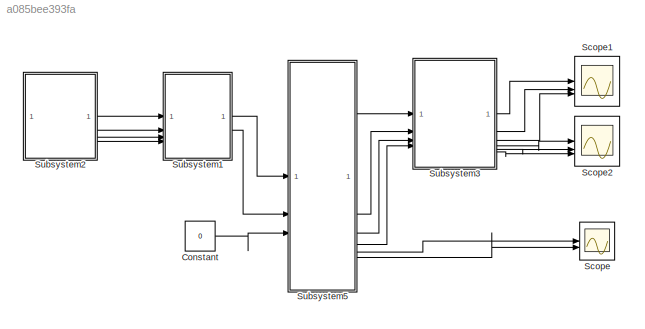
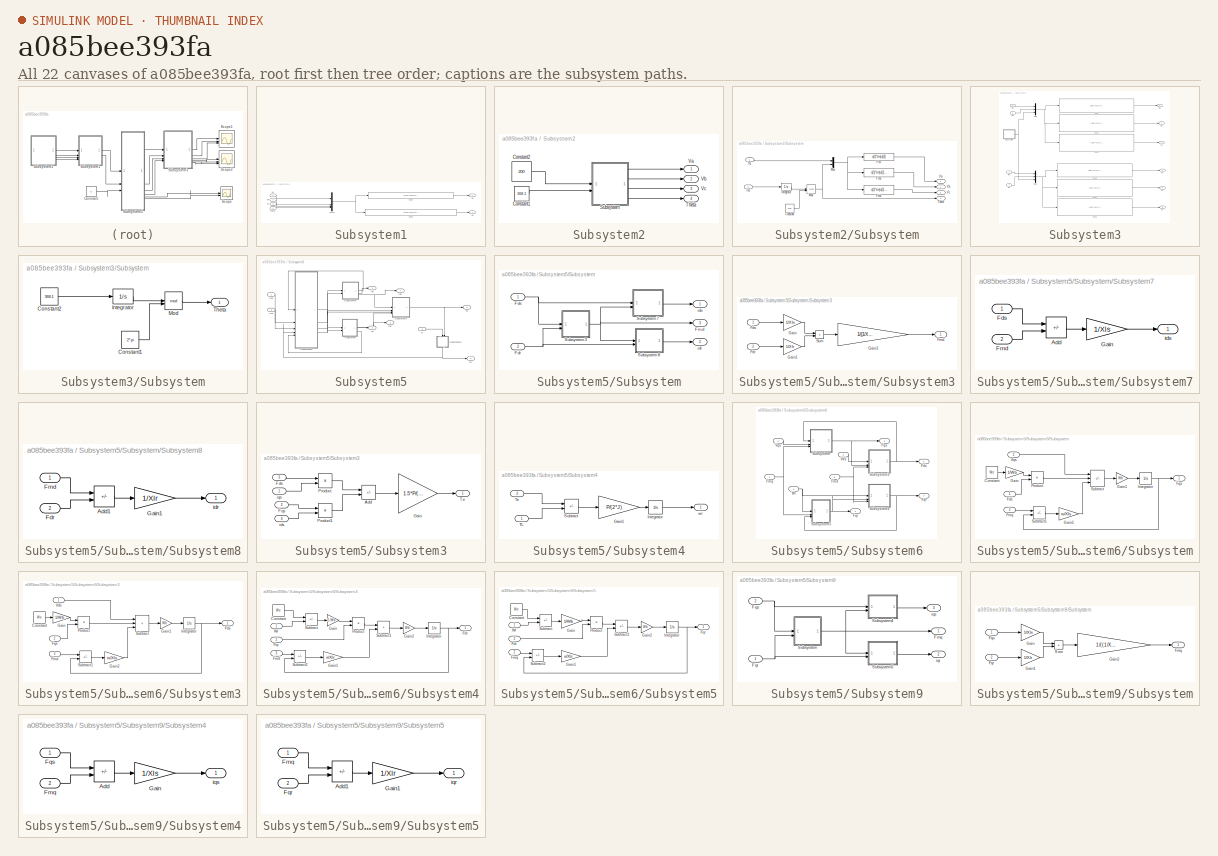
[diagram: thumbnail index - all 22 canvases of the model, root first then tree order]
MODEL slx_a085bee393fa
KIND model
CONFIG AbsTol = auto
CONFIG EnableMultiTasking = off
CONFIG FixedStep = auto
CONFIG MaxStep = auto
CONFIG MinStep = auto
CONFIG RelTol = 1e-3
CONFIG SampleTimeConstraint = Unconstrained
CONFIG SolverName = VariableStepAuto
CONFIG StartTime = 0.0
CONFIG StopTime = 100
BLOCK [Constant] Constant
  Value = 0
BLOCK [Scope] Scope
  Floating = off
  NumInputPorts = 2
  ScopeSpecificationString = Simulink.scopes.TimeScopeBlockCfg('CurrentConfiguration', extmgr.ConfigurationSet(extmgr.Configuration('Core','General UI',true),extmgr.Configuration('Core','Source UI',true),extmgr.Configuration('Sources','WiredSimulink',true),extmgr.Configuration('Visuals','Time Domain',true,'SerializedDisplays',{struct('MinYLimReal','-3.77568','MaxYLimReal','5.57688','YLabelReal','','MinYLimMag','0.00000','MaxY...<+2059ch>
BLOCK [Scope] Scope1
  Floating = off
  NumInputPorts = 3
  ScopeSpecificationString = Simulink.scopes.TimeScopeBlockCfg('CurrentConfiguration', extmgr.ConfigurationSet(extmgr.Configuration('Core','General UI',true),extmgr.Configuration('Core','Source UI',true),extmgr.Configuration('Sources','WiredSimulink',true,'DataLoggingVariableName','ScopeData1'),extmgr.Configuration('Visuals','Time Domain',true,'SerializedDisplays',{struct('MinYLimReal','-91.05672','MaxYLimReal','86.67405','YL...<+2805ch>
BLOCK [Scope] Scope2
  Floating = off
  NumInputPorts = 3
  ScopeSpecificationString = Simulink.scopes.TimeScopeBlockCfg('CurrentConfiguration', extmgr.ConfigurationSet(extmgr.Configuration('Core','General UI',true),extmgr.Configuration('Core','Source UI',true),extmgr.Configuration('Sources','WiredSimulink',true,'DataLoggingVariableName','ScopeData2'),extmgr.Configuration('Visuals','Time Domain',true,'SerializedDisplays',{struct('MinYLimReal','-83.80173','MaxYLimReal','89.36896','YL...<+2799ch>
BLOCK [SubSystem] Subsystem1
BLOCK [Fcn] Subsystem1/Fcn3
  Expr = (2/3)*(u[1]*sin(u[4])+u[2]*(sin(u[4]-((120*3.14)/180)))+u[3]*(sin(u[4]+((120*3.14)/180))))
BLOCK [Fcn] Subsystem1/Fcn4
  Expr = (2/3)*(u[1]*cos(u[4])+u[2]*(cos(u[4]-((120*3.14)/180)))+u[3]*(cos(u[4]+((120*3.14)/180))))
BLOCK [Mux] Subsystem1/Mux1
  DisplayOption = bar
BLOCK [Inport] Subsystem1/Va
BLOCK [Inport] Subsystem1/Vb
  Port = 2
BLOCK [Inport] Subsystem1/Vc
  Port = 3
BLOCK [Outport] Subsystem1/Vd
BLOCK [Outport] Subsystem1/Vq
  Port = 2
BLOCK [Inport] Subsystem1/theta
  Port = 4
BLOCK [SubSystem] Subsystem2
BLOCK [Constant] Subsystem2/Constant1
  Value = 368.1
BLOCK [Constant] Subsystem2/Constant2
  Value = 200
BLOCK [SubSystem] Subsystem2/Subsystem
BLOCK [Constant] Subsystem2/Subsystem/Constant
  Value = 2*pi
BLOCK [Fcn] Subsystem2/Subsystem/Fcn
  Expr = u(1)*sin(u(2))
BLOCK [Fcn] Subsystem2/Subsystem/Fcn1
  Expr = u(1)*sin(u(2)-2*pi/3)
BLOCK [Fcn] Subsystem2/Subsystem/Fcn2
  Expr = u(1)*sin(u(2)+2*pi/3)
BLOCK [Inport] Subsystem2/Subsystem/In1
BLOCK [Inport] Subsystem2/Subsystem/In2
  Port = 2
BLOCK [Integrator] Subsystem2/Subsystem/Integrator
BLOCK [Math] Subsystem2/Subsystem/Mod
  Operator = mod
BLOCK [Mux] Subsystem2/Subsystem/Mux
  DisplayOption = bar
  Inputs = 2
BLOCK [Outport] Subsystem2/Subsystem/Theta
  Port = 4
BLOCK [Outport] Subsystem2/Subsystem/Va
BLOCK [Outport] Subsystem2/Subsystem/Vb
  Port = 2
BLOCK [Outport] Subsystem2/Subsystem/Vc
  Port = 3
BLOCK [Outport] Subsystem2/Theta
  Port = 4
BLOCK [Outport] Subsystem2/Va
BLOCK [Outport] Subsystem2/Vb
  Port = 2
BLOCK [Outport] Subsystem2/Vc
  Port = 3
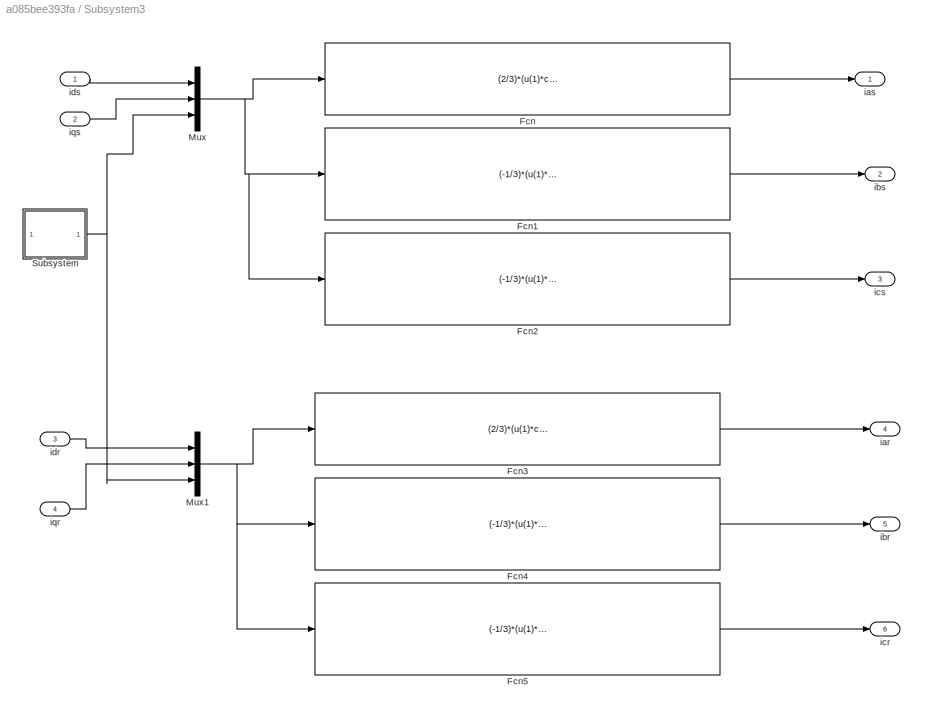
BLOCK [SubSystem] Subsystem3
BLOCK [Fcn] Subsystem3/Fcn
  Expr = (2/3)*(u(1)*cos(u(3))-u(2)*sin(u(3)))
BLOCK [Fcn] Subsystem3/Fcn1
  Expr = (-1/3)*(u(1)*(cos(u(3))+1.732*sin(u(3)))+u(2)*(1.732*cos(u(3))-sin(u(3))))
BLOCK [Fcn] Subsystem3/Fcn2
  Expr = (-1/3)*(u(1)*(cos(u(3))-1.732*sin(u(3)))-u(2)*(1.732*cos(u(3))-sin(u(3))))
BLOCK [Fcn] Subsystem3/Fcn3
  Expr = (2/3)*(u(1)*cos(u(3))-u(2)*sin(u(3)))
BLOCK [Fcn] Subsystem3/Fcn4
  Expr = (-1/3)*(u(1)*(cos(u(3))+1.732*sin(u(3)))+u(2)*(1.732*cos(u(3))-sin(u(3))))
BLOCK [Fcn] Subsystem3/Fcn5
  Expr = (-1/3)*(u(1)*(cos(u(3))-1.732*sin(u(3)))-u(2)*(1.732*cos(u(3))-sin(u(3))))
BLOCK [Mux] Subsystem3/Mux
  DisplayOption = bar
  Inputs = 3
BLOCK [Mux] Subsystem3/Mux1
  DisplayOption = bar
  Inputs = 3
BLOCK [SubSystem] Subsystem3/Subsystem
BLOCK [Constant] Subsystem3/Subsystem/Constant1
  Value = 2*pi
BLOCK [Constant] Subsystem3/Subsystem/Constant2
  Value = 368.1
BLOCK [Integrator] Subsystem3/Subsystem/Integrator
BLOCK [Math] Subsystem3/Subsystem/Mod
  Operator = mod
BLOCK [Outport] Subsystem3/Subsystem/Theta
BLOCK [Outport] Subsystem3/iar
  Port = 4
BLOCK [Outport] Subsystem3/ias
BLOCK [Outport] Subsystem3/ibr
  Port = 5
BLOCK [Outport] Subsystem3/ibs
  Port = 2
BLOCK [Outport] Subsystem3/icr
  Port = 6
BLOCK [Outport] Subsystem3/ics
  Port = 3
BLOCK [Inport] Subsystem3/idr
  Port = 3
BLOCK [Inport] Subsystem3/ids
BLOCK [Inport] Subsystem3/iqr
  Port = 4
BLOCK [Inport] Subsystem3/iqs
  Port = 2
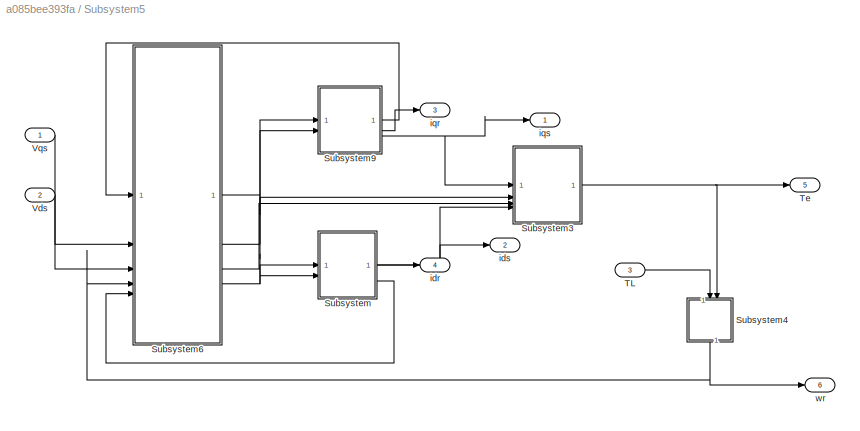
BLOCK [SubSystem] Subsystem5
BLOCK [SubSystem] Subsystem5/Subsystem
BLOCK [Inport] Subsystem5/Subsystem/Fdr
  Port = 2
BLOCK [Inport] Subsystem5/Subsystem/Fds
BLOCK [Outport] Subsystem5/Subsystem/Fmd
  Port = 3
BLOCK [SubSystem] Subsystem5/Subsystem/Subsystem3
BLOCK [Inport] Subsystem5/Subsystem/Subsystem3/Fdr
  Port = 2
BLOCK [Inport] Subsystem5/Subsystem/Subsystem3/Fds
BLOCK [Outport] Subsystem5/Subsystem/Subsystem3/Fmd
BLOCK [Gain] Subsystem5/Subsystem/Subsystem3/Gain
  Gain = 1/Xls
BLOCK [Gain] Subsystem5/Subsystem/Subsystem3/Gain1
  Gain = 1/Xlr
BLOCK [Gain] Subsystem5/Subsystem/Subsystem3/Gain2
  Gain = 1/((1/Xm)+(1/Xls)+(1/Xlr))
BLOCK [Sum] Subsystem5/Subsystem/Subsystem3/Sum
  IconShape = rectangular
BLOCK [SubSystem] Subsystem5/Subsystem/Subsystem7
BLOCK [Sum] Subsystem5/Subsystem/Subsystem7/Add
  IconShape = rectangular
  Inputs = +-
BLOCK [Inport] Subsystem5/Subsystem/Subsystem7/Fds
BLOCK [Inport] Subsystem5/Subsystem/Subsystem7/Fmd
  Port = 2
BLOCK [Gain] Subsystem5/Subsystem/Subsystem7/Gain
  Gain = 1/Xls
BLOCK [Outport] Subsystem5/Subsystem/Subsystem7/ids
BLOCK [SubSystem] Subsystem5/Subsystem/Subsystem8
BLOCK [Sum] Subsystem5/Subsystem/Subsystem8/Add1
  IconShape = rectangular
  Inputs = -+
BLOCK [Inport] Subsystem5/Subsystem/Subsystem8/Fdr
  Port = 2
BLOCK [Inport] Subsystem5/Subsystem/Subsystem8/Fmd
BLOCK [Gain] Subsystem5/Subsystem/Subsystem8/Gain1
  Gain = 1/Xlr
BLOCK [Outport] Subsystem5/Subsystem/Subsystem8/idr
BLOCK [Outport] Subsystem5/Subsystem/idr
  Port = 2
BLOCK [Outport] Subsystem5/Subsystem/ids
BLOCK [SubSystem] Subsystem5/Subsystem3
BLOCK [Sum] Subsystem5/Subsystem3/Add
  IconShape = rectangular
  Inputs = +-
BLOCK [Inport] Subsystem5/Subsystem3/Fds
  Port = 3
BLOCK [Inport] Subsystem5/Subsystem3/Fqs
  Port = 2
BLOCK [Gain] Subsystem5/Subsystem3/Gain
  Gain = 1.5*P/(2*wb)
BLOCK [Product] Subsystem5/Subsystem3/Product
BLOCK [Product] Subsystem5/Subsystem3/Product1
BLOCK [Outport] Subsystem5/Subsystem3/Te
BLOCK [Inport] Subsystem5/Subsystem3/ids
  Port = 4
BLOCK [Inport] Subsystem5/Subsystem3/iqs
BLOCK [SubSystem] Subsystem5/Subsystem4
  NameLocation = left
BLOCK [Gain] Subsystem5/Subsystem4/Gain1
  Gain = P/(2*J)
BLOCK [Integrator] Subsystem5/Subsystem4/Integrator
BLOCK [Sum] Subsystem5/Subsystem4/Subtract
  IconShape = rectangular
  Inputs = +-
BLOCK [Inport] Subsystem5/Subsystem4/TL
BLOCK [Inport] Subsystem5/Subsystem4/Te
  Port = 2
BLOCK [Outport] Subsystem5/Subsystem4/wr
BLOCK [SubSystem] Subsystem5/Subsystem6
BLOCK [Outport] Subsystem5/Subsystem6/Fdr
  Port = 4
BLOCK [Outport] Subsystem5/Subsystem6/Fds
  Port = 3
BLOCK [Inport] Subsystem5/Subsystem6/Fmd
  Port = 5
BLOCK [Inport] Subsystem5/Subsystem6/Fmq
BLOCK [Outport] Subsystem5/Subsystem6/Fqr
BLOCK [Outport] Subsystem5/Subsystem6/Fqs
  Port = 2
BLOCK [SubSystem] Subsystem5/Subsystem6/Subsystem
BLOCK [Constant] Subsystem5/Subsystem6/Subsystem/Constant
  Value = We
BLOCK [Inport] Subsystem5/Subsystem6/Subsystem/Fds
BLOCK [Inport] Subsystem5/Subsystem6/Subsystem/Fmq
  Port = 3
BLOCK [Outport] Subsystem5/Subsystem6/Subsystem/Fqs
BLOCK [Gain] Subsystem5/Subsystem6/Subsystem/Gain
  Gain = 1/Wb
BLOCK [Gain] Subsystem5/Subsystem6/Subsystem/Gain1
  Gain = Wb
BLOCK [Gain] Subsystem5/Subsystem6/Subsystem/Gain2
  Gain = rs/Xls
BLOCK [Integrator] Subsystem5/Subsystem6/Subsystem/Integrator
BLOCK [Product] Subsystem5/Subsystem6/Subsystem/Product
BLOCK [Sum] Subsystem5/Subsystem6/Subsystem/Subtract
  IconShape = rectangular
  Inputs = +-+
BLOCK [Sum] Subsystem5/Subsystem6/Subsystem/Subtract1
  IconShape = rectangular
  Inputs = +-
BLOCK [Inport] Subsystem5/Subsystem6/Subsystem/Vqs
  Port = 2
BLOCK [SubSystem] Subsystem5/Subsystem6/Subsystem3
BLOCK [Constant] Subsystem5/Subsystem6/Subsystem3/Constant
  Value = We
BLOCK [Outport] Subsystem5/Subsystem6/Subsystem3/Fds
BLOCK [Inport] Subsystem5/Subsystem6/Subsystem3/Fmd
  Port = 3
BLOCK [Inport] Subsystem5/Subsystem6/Subsystem3/Fqs
  Port = 2
BLOCK [Gain] Subsystem5/Subsystem6/Subsystem3/Gain
  Gain = 1/Wb
BLOCK [Gain] Subsystem5/Subsystem6/Subsystem3/Gain1
  Gain = Wb
BLOCK [Gain] Subsystem5/Subsystem6/Subsystem3/Gain2
  Gain = rs/Xls
BLOCK [Integrator] Subsystem5/Subsystem6/Subsystem3/Integrator
BLOCK [Product] Subsystem5/Subsystem6/Subsystem3/Product
BLOCK [Sum] Subsystem5/Subsystem6/Subsystem3/Subtract
  IconShape = rectangular
  Inputs = +++
BLOCK [Sum] Subsystem5/Subsystem6/Subsystem3/Subtract1
  IconShape = rectangular
  Inputs = +-
BLOCK [Inport] Subsystem5/Subsystem6/Subsystem3/Vds
BLOCK [SubSystem] Subsystem5/Subsystem6/Subsystem4
BLOCK [Constant] Subsystem5/Subsystem6/Subsystem4/Constant
  Value = We
BLOCK [Outport] Subsystem5/Subsystem6/Subsystem4/Fdr
BLOCK [Inport] Subsystem5/Subsystem6/Subsystem4/Fmd
  Port = 3
BLOCK [Inport] Subsystem5/Subsystem6/Subsystem4/Fqr
  Port = 2
BLOCK [Gain] Subsystem5/Subsystem6/Subsystem4/Gain
  Gain = 1/Wb
BLOCK [Gain] Subsystem5/Subsystem6/Subsystem4/Gain1
  Gain = rr/Xlr
BLOCK [Gain] Subsystem5/Subsystem6/Subsystem4/Gain2
  Gain = Wb
BLOCK [Integrator] Subsystem5/Subsystem6/Subsystem4/Integrator
BLOCK [Product] Subsystem5/Subsystem6/Subsystem4/Product
BLOCK [Sum] Subsystem5/Subsystem6/Subsystem4/Subtract
  IconShape = rectangular
  Inputs = +-
BLOCK [Sum] Subsystem5/Subsystem6/Subsystem4/Subtract1
  IconShape = rectangular
BLOCK [Sum] Subsystem5/Subsystem6/Subsystem4/Subtract2
  IconShape = rectangular
  Inputs = +-
BLOCK [Inport] Subsystem5/Subsystem6/Subsystem4/Wr
BLOCK [SubSystem] Subsystem5/Subsystem6/Subsystem5
BLOCK [Constant] Subsystem5/Subsystem6/Subsystem5/Constant
  Value = We
BLOCK [Inport] Subsystem5/Subsystem6/Subsystem5/Fdr
  Port = 3
BLOCK [Inport] Subsystem5/Subsystem6/Subsystem5/Fmq
  Port = 2
BLOCK [Outport] Subsystem5/Subsystem6/Subsystem5/Fqr
BLOCK [Gain] Subsystem5/Subsystem6/Subsystem5/Gain
  Gain = 1/Wb
BLOCK [Gain] Subsystem5/Subsystem6/Subsystem5/Gain1
  Gain = rr/Xlr
BLOCK [Gain] Subsystem5/Subsystem6/Subsystem5/Gain2
  Gain = Wb
BLOCK [Integrator] Subsystem5/Subsystem6/Subsystem5/Integrator
BLOCK [Product] Subsystem5/Subsystem6/Subsystem5/Product
BLOCK [Sum] Subsystem5/Subsystem6/Subsystem5/Subtract
  IconShape = rectangular
  Inputs = +-
BLOCK [Sum] Subsystem5/Subsystem6/Subsystem5/Subtract1
  IconShape = rectangular
  Inputs = -+
BLOCK [Sum] Subsystem5/Subsystem6/Subsystem5/Subtract2
  IconShape = rectangular
  Inputs = +-
BLOCK [Inport] Subsystem5/Subsystem6/Subsystem5/Wr
BLOCK [Inport] Subsystem5/Subsystem6/Vds
  Port = 3
BLOCK [Inport] Subsystem5/Subsystem6/Vqs
  Port = 2
BLOCK [Inport] Subsystem5/Subsystem6/Wr
  Port = 4
BLOCK [SubSystem] Subsystem5/Subsystem9
BLOCK [Outport] Subsystem5/Subsystem9/Fmq
BLOCK [Inport] Subsystem5/Subsystem9/Fqr
BLOCK [Inport] Subsystem5/Subsystem9/Fqs
  Port = 2
BLOCK [SubSystem] Subsystem5/Subsystem9/Subsystem
BLOCK [Outport] Subsystem5/Subsystem9/Subsystem/Fmq
BLOCK [Inport] Subsystem5/Subsystem9/Subsystem/Fqr
  Port = 2
BLOCK [Inport] Subsystem5/Subsystem9/Subsystem/Fqs
BLOCK [Gain] Subsystem5/Subsystem9/Subsystem/Gain
  Gain = 1/Xls
BLOCK [Gain] Subsystem5/Subsystem9/Subsystem/Gain1
  Gain = 1/Xlr
BLOCK [Gain] Subsystem5/Subsystem9/Subsystem/Gain2
  Gain = 1/((1/Xm)+(1/Xls)+(1/Xlr))
BLOCK [Sum] Subsystem5/Subsystem9/Subsystem/Sum
  IconShape = rectangular
BLOCK [SubSystem] Subsystem5/Subsystem9/Subsystem4
BLOCK [Sum] Subsystem5/Subsystem9/Subsystem4/Add
  IconShape = rectangular
  Inputs = +-
BLOCK [Inport] Subsystem5/Subsystem9/Subsystem4/Fmq
  Port = 2
BLOCK [Inport] Subsystem5/Subsystem9/Subsystem4/Fqs
BLOCK [Gain] Subsystem5/Subsystem9/Subsystem4/Gain
  Gain = 1/Xls
BLOCK [Outport] Subsystem5/Subsystem9/Subsystem4/iqs
BLOCK [SubSystem] Subsystem5/Subsystem9/Subsystem5
BLOCK [Sum] Subsystem5/Subsystem9/Subsystem5/Add1
  IconShape = rectangular
  Inputs = -+
BLOCK [Inport] Subsystem5/Subsystem9/Subsystem5/Fmq
BLOCK [Inport] Subsystem5/Subsystem9/Subsystem5/Fqr
  Port = 2
BLOCK [Gain] Subsystem5/Subsystem9/Subsystem5/Gain1
  Gain = 1/Xlr
BLOCK [Outport] Subsystem5/Subsystem9/Subsystem5/iqr
BLOCK [Outport] Subsystem5/Subsystem9/iqr
  Port = 2
BLOCK [Outport] Subsystem5/Subsystem9/iqs
  Port = 3
BLOCK [Inport] Subsystem5/TL
  Port = 3
BLOCK [Outport] Subsystem5/Te
  Port = 5
BLOCK [Inport] Subsystem5/Vds
  Port = 2
BLOCK [Inport] Subsystem5/Vqs
BLOCK [Outport] Subsystem5/idr
  Port = 4
BLOCK [Outport] Subsystem5/ids
  Port = 2
BLOCK [Outport] Subsystem5/iqr
  Port = 3
BLOCK [Outport] Subsystem5/iqs
BLOCK [Outport] Subsystem5/wr
  Port = 6
LINE Constant:1 -> Subsystem5:3
LINE Subsystem1/Fcn3:1 -> Subsystem1/Vq:1
LINE Subsystem1/Fcn4:1 -> Subsystem1/Vd:1
NET Subsystem1/Mux1:1 -> Subsystem1/Fcn3:1, Subsystem1/Fcn4:1
LINE Subsystem1/Va:1 -> Subsystem1/Mux1:1
LINE Subsystem1/Vb:1 -> Subsystem1/Mux1:2
LINE Subsystem1/Vc:1 -> Subsystem1/Mux1:3
LINE Subsystem1/theta:1 -> Subsystem1/Mux1:4
LINE Subsystem1:1 -> Subsystem5:1
LINE Subsystem1:2 -> Subsystem5:2
LINE Subsystem2/Constant1:1 -> Subsystem2/Subsystem:2
LINE Subsystem2/Constant2:1 -> Subsystem2/Subsystem:1
LINE Subsystem2/Subsystem/Constant:1 -> Subsystem2/Subsystem/Mod:2
LINE Subsystem2/Subsystem/Fcn1:1 -> Subsystem2/Subsystem/Vb:1
LINE Subsystem2/Subsystem/Fcn2:1 -> Subsystem2/Subsystem/Vc:1
LINE Subsystem2/Subsystem/Fcn:1 -> Subsystem2/Subsystem/Va:1
LINE Subsystem2/Subsystem/In1:1 -> Subsystem2/Subsystem/Mux:1
LINE Subsystem2/Subsystem/In2:1 -> Subsystem2/Subsystem/Integrator:1
LINE Subsystem2/Subsystem/Integrator:1 -> Subsystem2/Subsystem/Mod:1
NET Subsystem2/Subsystem/Mod:1 -> Subsystem2/Subsystem/Mux:2, Subsystem2/Subsystem/Theta:1
NET Subsystem2/Subsystem/Mux:1 -> Subsystem2/Subsystem/Fcn1:1, Subsystem2/Subsystem/Fcn2:1, Subsystem2/Subsystem/Fcn:1
LINE Subsystem2/Subsystem:1 -> Subsystem2/Va:1
LINE Subsystem2/Subsystem:2 -> Subsystem2/Vb:1
LINE Subsystem2/Subsystem:3 -> Subsystem2/Vc:1
LINE Subsystem2/Subsystem:4 -> Subsystem2/Theta:1
LINE Subsystem2:1 -> Subsystem1:1
LINE Subsystem2:2 -> Subsystem1:2
LINE Subsystem2:3 -> Subsystem1:3
LINE Subsystem2:4 -> Subsystem1:4
LINE Subsystem3/Fcn1:1 -> Subsystem3/ibs:1
LINE Subsystem3/Fcn2:1 -> Subsystem3/ics:1
LINE Subsystem3/Fcn3:1 -> Subsystem3/iar:1
LINE Subsystem3/Fcn4:1 -> Subsystem3/ibr:1
LINE Subsystem3/Fcn5:1 -> Subsystem3/icr:1
LINE Subsystem3/Fcn:1 -> Subsystem3/ias:1
NET Subsystem3/Mux1:1 -> Subsystem3/Fcn3:1, Subsystem3/Fcn4:1, Subsystem3/Fcn5:1
NET Subsystem3/Mux:1 -> Subsystem3/Fcn1:1, Subsystem3/Fcn2:1, Subsystem3/Fcn:1
LINE Subsystem3/Subsystem/Constant1:1 -> Subsystem3/Subsystem/Mod:2
LINE Subsystem3/Subsystem/Constant2:1 -> Subsystem3/Subsystem/Integrator:1
LINE Subsystem3/Subsystem/Integrator:1 -> Subsystem3/Subsystem/Mod:1
LINE Subsystem3/Subsystem/Mod:1 -> Subsystem3/Subsystem/Theta:1
NET Subsystem3/Subsystem:1 -> Subsystem3/Mux1:3, Subsystem3/Mux:3
LINE Subsystem3/idr:1 -> Subsystem3/Mux1:1
LINE Subsystem3/ids:1 -> Subsystem3/Mux:1
LINE Subsystem3/iqr:1 -> Subsystem3/Mux1:2
LINE Subsystem3/iqs:1 -> Subsystem3/Mux:2
LINE Subsystem3:1 -> Scope1:1
LINE Subsystem3:2 -> Scope1:2
LINE Subsystem3:3 -> Scope1:3
LINE Subsystem3:4 -> Scope2:1
LINE Subsystem3:5 -> Scope2:2
LINE Subsystem3:6 -> Scope2:3
NET Subsystem5/Subsystem/Fdr:1 -> Subsystem5/Subsystem/Subsystem3:2, Subsystem5/Subsystem/Subsystem8:2
NET Subsystem5/Subsystem/Fds:1 -> Subsystem5/Subsystem/Subsystem3:1, Subsystem5/Subsystem/Subsystem7:1
LINE Subsystem5/Subsystem/Subsystem3/Fdr:1 -> Subsystem5/Subsystem/Subsystem3/Gain1:1
LINE Subsystem5/Subsystem/Subsystem3/Fds:1 -> Subsystem5/Subsystem/Subsystem3/Gain:1
LINE Subsystem5/Subsystem/Subsystem3/Gain1:1 -> Subsystem5/Subsystem/Subsystem3/Sum:2
LINE Subsystem5/Subsystem/Subsystem3/Gain2:1 -> Subsystem5/Subsystem/Subsystem3/Fmd:1
LINE Subsystem5/Subsystem/Subsystem3/Gain:1 -> Subsystem5/Subsystem/Subsystem3/Sum:1
LINE Subsystem5/Subsystem/Subsystem3/Sum:1 -> Subsystem5/Subsystem/Subsystem3/Gain2:1
NET Subsystem5/Subsystem/Subsystem3:1 -> Subsystem5/Subsystem/Fmd:1, Subsystem5/Subsystem/Subsystem7:2, Subsystem5/Subsystem/Subsystem8:1
LINE Subsystem5/Subsystem/Subsystem7/Add:1 -> Subsystem5/Subsystem/Subsystem7/Gain:1
LINE Subsystem5/Subsystem/Subsystem7/Fds:1 -> Subsystem5/Subsystem/Subsystem7/Add:1
LINE Subsystem5/Subsystem/Subsystem7/Fmd:1 -> Subsystem5/Subsystem/Subsystem7/Add:2
LINE Subsystem5/Subsystem/Subsystem7/Gain:1 -> Subsystem5/Subsystem/Subsystem7/ids:1
LINE Subsystem5/Subsystem/Subsystem7:1 -> Subsystem5/Subsystem/ids:1
LINE Subsystem5/Subsystem/Subsystem8/Add1:1 -> Subsystem5/Subsystem/Subsystem8/Gain1:1
LINE Subsystem5/Subsystem/Subsystem8/Fdr:1 -> Subsystem5/Subsystem/Subsystem8/Add1:2
LINE Subsystem5/Subsystem/Subsystem8/Fmd:1 -> Subsystem5/Subsystem/Subsystem8/Add1:1
LINE Subsystem5/Subsystem/Subsystem8/Gain1:1 -> Subsystem5/Subsystem/Subsystem8/idr:1
LINE Subsystem5/Subsystem/Subsystem8:1 -> Subsystem5/Subsystem/idr:1
LINE Subsystem5/Subsystem3/Add:1 -> Subsystem5/Subsystem3/Gain:1
LINE Subsystem5/Subsystem3/Fds:1 -> Subsystem5/Subsystem3/Product:1
LINE Subsystem5/Subsystem3/Fqs:1 -> Subsystem5/Subsystem3/Product1:1
LINE Subsystem5/Subsystem3/Gain:1 -> Subsystem5/Subsystem3/Te:1
LINE Subsystem5/Subsystem3/Product1:1 -> Subsystem5/Subsystem3/Add:2
LINE Subsystem5/Subsystem3/Product:1 -> Subsystem5/Subsystem3/Add:1
LINE Subsystem5/Subsystem3/ids:1 -> Subsystem5/Subsystem3/Product1:2
LINE Subsystem5/Subsystem3/iqs:1 -> Subsystem5/Subsystem3/Product:2
NET Subsystem5/Subsystem3:1 -> Subsystem5/Subsystem4:2, Subsystem5/Te:1
LINE Subsystem5/Subsystem4/Gain1:1 -> Subsystem5/Subsystem4/Integrator:1
LINE Subsystem5/Subsystem4/Integrator:1 -> Subsystem5/Subsystem4/wr:1
LINE Subsystem5/Subsystem4/Subtract:1 -> Subsystem5/Subsystem4/Gain1:1
LINE Subsystem5/Subsystem4/TL:1 -> Subsystem5/Subsystem4/Subtract:2
LINE Subsystem5/Subsystem4/Te:1 -> Subsystem5/Subsystem4/Subtract:1
NET Subsystem5/Subsystem4:1 -> Subsystem5/Subsystem6:4, Subsystem5/wr:1
NET Subsystem5/Subsystem6/Fmd:1 -> Subsystem5/Subsystem6/Subsystem3:3, Subsystem5/Subsystem6/Subsystem4:3
NET Subsystem5/Subsystem6/Fmq:1 -> Subsystem5/Subsystem6/Subsystem5:2, Subsystem5/Subsystem6/Subsystem:3
LINE Subsystem5/Subsystem6/Subsystem/Constant:1 -> Subsystem5/Subsystem6/Subsystem/Gain:1
LINE Subsystem5/Subsystem6/Subsystem/Fds:1 -> Subsystem5/Subsystem6/Subsystem/Product:2
LINE Subsystem5/Subsystem6/Subsystem/Fmq:1 -> Subsystem5/Subsystem6/Subsystem/Subtract1:1
LINE Subsystem5/Subsystem6/Subsystem/Gain1:1 -> Subsystem5/Subsystem6/Subsystem/Integrator:1
LINE Subsystem5/Subsystem6/Subsystem/Gain2:1 -> Subsystem5/Subsystem6/Subsystem/Subtract:3
LINE Subsystem5/Subsystem6/Subsystem/Gain:1 -> Subsystem5/Subsystem6/Subsystem/Product:1
NET Subsystem5/Subsystem6/Subsystem/Integrator:1 -> Subsystem5/Subsystem6/Subsystem/Fqs:1, Subsystem5/Subsystem6/Subsystem/Subtract1:2
LINE Subsystem5/Subsystem6/Subsystem/Product:1 -> Subsystem5/Subsystem6/Subsystem/Subtract:2
LINE Subsystem5/Subsystem6/Subsystem/Subtract1:1 -> Subsystem5/Subsystem6/Subsystem/Gain2:1
LINE Subsystem5/Subsystem6/Subsystem/Subtract:1 -> Subsystem5/Subsystem6/Subsystem/Gain1:1
LINE Subsystem5/Subsystem6/Subsystem/Vqs:1 -> Subsystem5/Subsystem6/Subsystem/Subtract:1
LINE Subsystem5/Subsystem6/Subsystem3/Constant:1 -> Subsystem5/Subsystem6/Subsystem3/Gain:1
LINE Subsystem5/Subsystem6/Subsystem3/Fmd:1 -> Subsystem5/Subsystem6/Subsystem3/Subtract1:1
LINE Subsystem5/Subsystem6/Subsystem3/Fqs:1 -> Subsystem5/Subsystem6/Subsystem3/Product:2
LINE Subsystem5/Subsystem6/Subsystem3/Gain1:1 -> Subsystem5/Subsystem6/Subsystem3/Integrator:1
LINE Subsystem5/Subsystem6/Subsystem3/Gain2:1 -> Subsystem5/Subsystem6/Subsystem3/Subtract:3
LINE Subsystem5/Subsystem6/Subsystem3/Gain:1 -> Subsystem5/Subsystem6/Subsystem3/Product:1
NET Subsystem5/Subsystem6/Subsystem3/Integrator:1 -> Subsystem5/Subsystem6/Subsystem3/Fds:1, Subsystem5/Subsystem6/Subsystem3/Subtract1:2
LINE Subsystem5/Subsystem6/Subsystem3/Product:1 -> Subsystem5/Subsystem6/Subsystem3/Subtract:2
LINE Subsystem5/Subsystem6/Subsystem3/Subtract1:1 -> Subsystem5/Subsystem6/Subsystem3/Gain2:1
LINE Subsystem5/Subsystem6/Subsystem3/Subtract:1 -> Subsystem5/Subsystem6/Subsystem3/Gain1:1
LINE Subsystem5/Subsystem6/Subsystem3/Vds:1 -> Subsystem5/Subsystem6/Subsystem3/Subtract:1
NET Subsystem5/Subsystem6/Subsystem3:1 -> Subsystem5/Subsystem6/Fds:1, Subsystem5/Subsystem6/Subsystem:1
LINE Subsystem5/Subsystem6/Subsystem4/Constant:1 -> Subsystem5/Subsystem6/Subsystem4/Subtract:1
LINE Subsystem5/Subsystem6/Subsystem4/Fmd:1 -> Subsystem5/Subsystem6/Subsystem4/Subtract2:1
LINE Subsystem5/Subsystem6/Subsystem4/Fqr:1 -> Subsystem5/Subsystem6/Subsystem4/Product:2
LINE Subsystem5/Subsystem6/Subsystem4/Gain1:1 -> Subsystem5/Subsystem6/Subsystem4/Subtract1:2
LINE Subsystem5/Subsystem6/Subsystem4/Gain2:1 -> Subsystem5/Subsystem6/Subsystem4/Integrator:1
LINE Subsystem5/Subsystem6/Subsystem4/Gain:1 -> Subsystem5/Subsystem6/Subsystem4/Product:1
NET Subsystem5/Subsystem6/Subsystem4/Integrator:1 -> Subsystem5/Subsystem6/Subsystem4/Fdr:1, Subsystem5/Subsystem6/Subsystem4/Subtract2:2
LINE Subsystem5/Subsystem6/Subsystem4/Product:1 -> Subsystem5/Subsystem6/Subsystem4/Subtract1:1
LINE Subsystem5/Subsystem6/Subsystem4/Subtract1:1 -> Subsystem5/Subsystem6/Subsystem4/Gain2:1
LINE Subsystem5/Subsystem6/Subsystem4/Subtract2:1 -> Subsystem5/Subsystem6/Subsystem4/Gain1:1
LINE Subsystem5/Subsystem6/Subsystem4/Subtract:1 -> Subsystem5/Subsystem6/Subsystem4/Gain:1
LINE Subsystem5/Subsystem6/Subsystem4/Wr:1 -> Subsystem5/Subsystem6/Subsystem4/Subtract:2
NET Subsystem5/Subsystem6/Subsystem4:1 -> Subsystem5/Subsystem6/Fdr:1, Subsystem5/Subsystem6/Subsystem5:3
LINE Subsystem5/Subsystem6/Subsystem5/Constant:1 -> Subsystem5/Subsystem6/Subsystem5/Subtract:1
LINE Subsystem5/Subsystem6/Subsystem5/Fdr:1 -> Subsystem5/Subsystem6/Subsystem5/Product:2
LINE Subsystem5/Subsystem6/Subsystem5/Fmq:1 -> Subsystem5/Subsystem6/Subsystem5/Subtract2:1
LINE Subsystem5/Subsystem6/Subsystem5/Gain1:1 -> Subsystem5/Subsystem6/Subsystem5/Subtract1:2
LINE Subsystem5/Subsystem6/Subsystem5/Gain2:1 -> Subsystem5/Subsystem6/Subsystem5/Integrator:1
LINE Subsystem5/Subsystem6/Subsystem5/Gain:1 -> Subsystem5/Subsystem6/Subsystem5/Product:1
NET Subsystem5/Subsystem6/Subsystem5/Integrator:1 -> Subsystem5/Subsystem6/Subsystem5/Fqr:1, Subsystem5/Subsystem6/Subsystem5/Subtract2:2
LINE Subsystem5/Subsystem6/Subsystem5/Product:1 -> Subsystem5/Subsystem6/Subsystem5/Subtract1:1
LINE Subsystem5/Subsystem6/Subsystem5/Subtract1:1 -> Subsystem5/Subsystem6/Subsystem5/Gain2:1
LINE Subsystem5/Subsystem6/Subsystem5/Subtract2:1 -> Subsystem5/Subsystem6/Subsystem5/Gain1:1
LINE Subsystem5/Subsystem6/Subsystem5/Subtract:1 -> Subsystem5/Subsystem6/Subsystem5/Gain:1
LINE Subsystem5/Subsystem6/Subsystem5/Wr:1 -> Subsystem5/Subsystem6/Subsystem5/Subtract:2
NET Subsystem5/Subsystem6/Subsystem5:1 -> Subsystem5/Subsystem6/Fqr:1, Subsystem5/Subsystem6/Subsystem4:2
NET Subsystem5/Subsystem6/Subsystem:1 -> Subsystem5/Subsystem6/Fqs:1, Subsystem5/Subsystem6/Subsystem3:2
LINE Subsystem5/Subsystem6/Vds:1 -> Subsystem5/Subsystem6/Subsystem3:1
LINE Subsystem5/Subsystem6/Vqs:1 -> Subsystem5/Subsystem6/Subsystem:2
NET Subsystem5/Subsystem6/Wr:1 -> Subsystem5/Subsystem6/Subsystem4:1, Subsystem5/Subsystem6/Subsystem5:1
LINE Subsystem5/Subsystem6:1 -> Subsystem5/Subsystem9:1
NET Subsystem5/Subsystem6:2 -> Subsystem5/Subsystem3:2, Subsystem5/Subsystem9:2
NET Subsystem5/Subsystem6:3 -> Subsystem5/Subsystem3:3, Subsystem5/Subsystem:1
LINE Subsystem5/Subsystem6:4 -> Subsystem5/Subsystem:2
NET Subsystem5/Subsystem9/Fqr:1 -> Subsystem5/Subsystem9/Subsystem5:2, Subsystem5/Subsystem9/Subsystem:2
NET Subsystem5/Subsystem9/Fqs:1 -> Subsystem5/Subsystem9/Subsystem4:1, Subsystem5/Subsystem9/Subsystem:1
LINE Subsystem5/Subsystem9/Subsystem/Fqr:1 -> Subsystem5/Subsystem9/Subsystem/Gain1:1
LINE Subsystem5/Subsystem9/Subsystem/Fqs:1 -> Subsystem5/Subsystem9/Subsystem/Gain:1
LINE Subsystem5/Subsystem9/Subsystem/Gain1:1 -> Subsystem5/Subsystem9/Subsystem/Sum:2
LINE Subsystem5/Subsystem9/Subsystem/Gain2:1 -> Subsystem5/Subsystem9/Subsystem/Fmq:1
LINE Subsystem5/Subsystem9/Subsystem/Gain:1 -> Subsystem5/Subsystem9/Subsystem/Sum:1
LINE Subsystem5/Subsystem9/Subsystem/Sum:1 -> Subsystem5/Subsystem9/Subsystem/Gain2:1
LINE Subsystem5/Subsystem9/Subsystem4/Add:1 -> Subsystem5/Subsystem9/Subsystem4/Gain:1
LINE Subsystem5/Subsystem9/Subsystem4/Fmq:1 -> Subsystem5/Subsystem9/Subsystem4/Add:2
LINE Subsystem5/Subsystem9/Subsystem4/Fqs:1 -> Subsystem5/Subsystem9/Subsystem4/Add:1
LINE Subsystem5/Subsystem9/Subsystem4/Gain:1 -> Subsystem5/Subsystem9/Subsystem4/iqs:1
LINE Subsystem5/Subsystem9/Subsystem4:1 -> Subsystem5/Subsystem9/iqs:1
LINE Subsystem5/Subsystem9/Subsystem5/Add1:1 -> Subsystem5/Subsystem9/Subsystem5/Gain1:1
LINE Subsystem5/Subsystem9/Subsystem5/Fmq:1 -> Subsystem5/Subsystem9/Subsystem5/Add1:1
LINE Subsystem5/Subsystem9/Subsystem5/Fqr:1 -> Subsystem5/Subsystem9/Subsystem5/Add1:2
LINE Subsystem5/Subsystem9/Subsystem5/Gain1:1 -> Subsystem5/Subsystem9/Subsystem5/iqr:1
LINE Subsystem5/Subsystem9/Subsystem5:1 -> Subsystem5/Subsystem9/iqr:1
NET Subsystem5/Subsystem9/Subsystem:1 -> Subsystem5/Subsystem9/Fmq:1, Subsystem5/Subsystem9/Subsystem4:2, Subsystem5/Subsystem9/Subsystem5:1
LINE Subsystem5/Subsystem9:1 -> Subsystem5/Subsystem6:1
LINE Subsystem5/Subsystem9:2 -> Subsystem5/iqr:1
NET Subsystem5/Subsystem9:3 -> Subsystem5/Subsystem3:1, Subsystem5/iqs:1
NET Subsystem5/Subsystem:1 -> Subsystem5/Subsystem3:4, Subsystem5/ids:1
LINE Subsystem5/Subsystem:2 -> Subsystem5/idr:1
LINE Subsystem5/Subsystem:3 -> Subsystem5/Subsystem6:5
LINE Subsystem5/TL:1 -> Subsystem5/Subsystem4:1
LINE Subsystem5/Vds:1 -> Subsystem5/Subsystem6:3
LINE Subsystem5/Vqs:1 -> Subsystem5/Subsystem6:2
LINE Subsystem5:1 -> Subsystem3:1
LINE Subsystem5:2 -> Subsystem3:2
LINE Subsystem5:3 -> Subsystem3:3
LINE Subsystem5:4 -> Subsystem3:4
LINE Subsystem5:5 -> Scope:1
LINE Subsystem5:6 -> Scope:2
note: NET lines group one-source signal fan-out (src -> all destinations, sorted); 1:1 wires keep LINE
